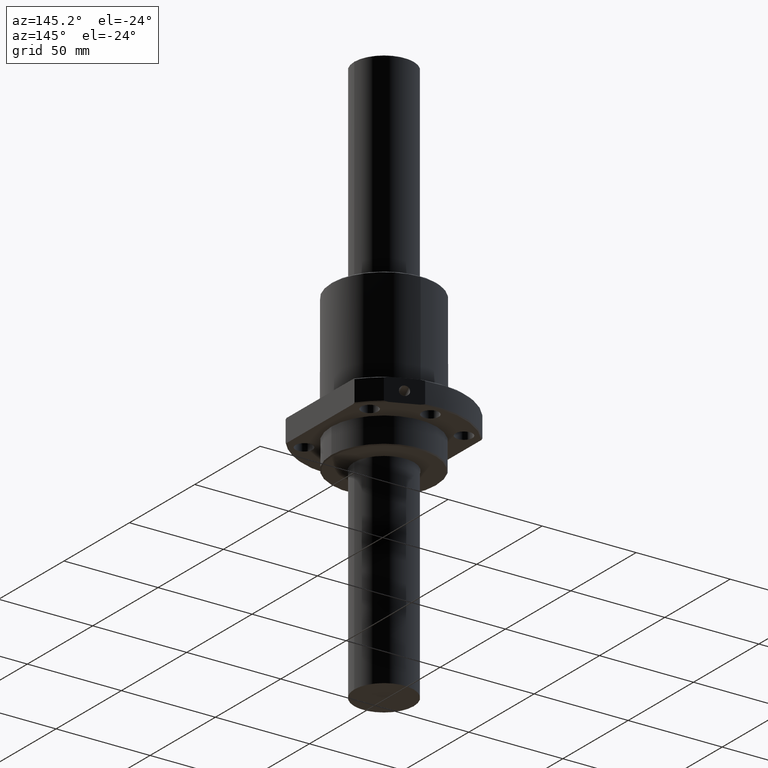
[diagram: clean part render]
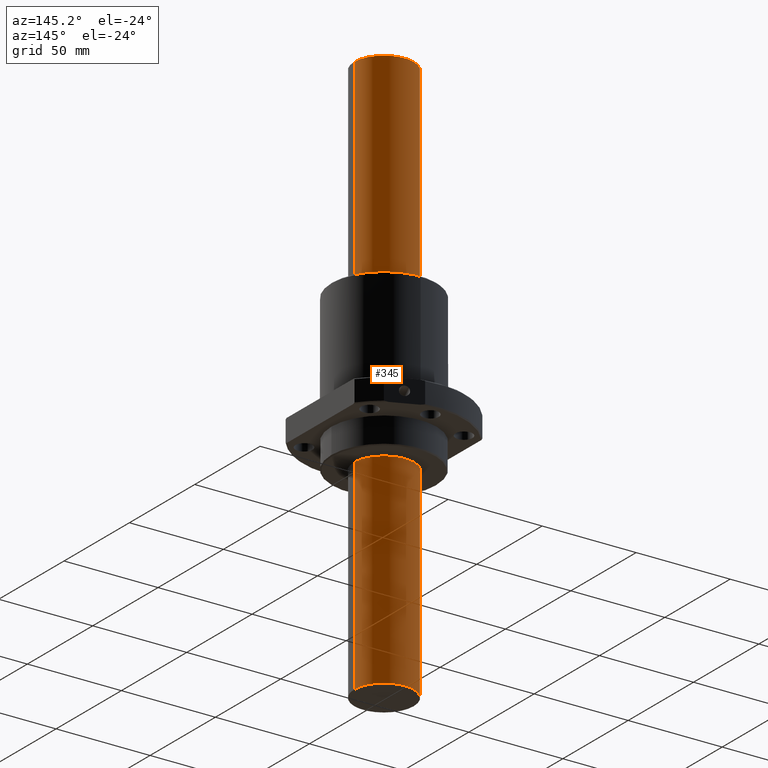
[diagram: same view with one face highlighted and labeled with its STEP entity id]
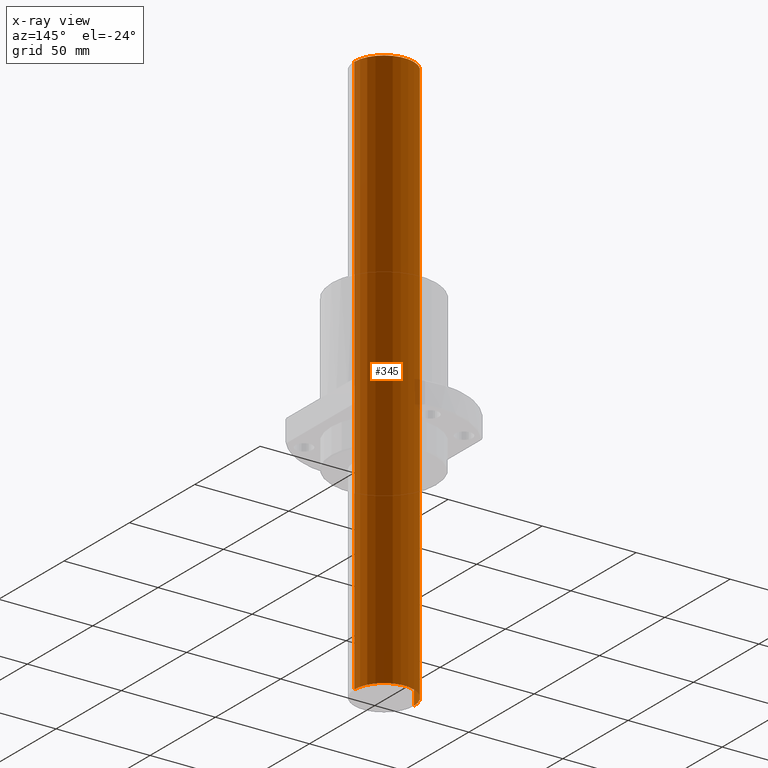
[diagram: x-ray of the same camera — body ghosted, the highlighted face saturated]
A machine part, auxiliary view. The second image highlights one B-rep face of the part: STEP entity #345.
The next image is the same camera in x-ray: the body ghosted, the highlighted face saturated — about 0% of this face is hidden behind the body in this view.
In plain terms, the highlighted cylindrical surface (edge-blend (fillet) strip) has radius 15.8 mm, axis along (0, 0, 1).
Its self-contained STEP definition (entity closure, byte-faithful):
#9 = ORIENTED_EDGE ( 'NONE', *, *, #1585, .F. ) ;
#13 = CARTESIAN_POINT ( 'NONE',  ( 15.80000000000000100, 0.0000000000000000000, -300.0000000000000000 ) ) ;
#67 = ORIENTED_EDGE ( 'NONE', *, *, #1762, .T. ) ;
#150 = DIRECTION ( 'NONE',  ( 1.000000000000000000, 0.0000000000000000000, 0.0000000000000000000 ) ) ;
#152 = DIRECTION ( 'NONE',  ( 0.0000000000000000000, -0.0000000000000000000, 1.000000000000000000 ) ) ;
#160 = CARTESIAN_POINT ( 'NONE',  ( 0.0000000000000000000, 0.0000000000000000000, 0.0000000000000000000 ) ) ;
#180 = VECTOR ( 'NONE', #1922, 1000.000000000000000 ) ;
#189 = CARTESIAN_POINT ( 'NONE',  ( 15.80000000000000100, 0.0000000000000000000, 0.0000000000000000000 ) ) ;
#234 = DIRECTION ( 'NONE',  ( 0.0000000000000000000, -0.0000000000000000000, 1.000000000000000000 ) ) ;
#345 = ADVANCED_FACE ( 'NONE', ( #736 ), #549, .T. ) ;
#409 = DIRECTION ( 'NONE',  ( 1.000000000000000000, 0.0000000000000000000, 0.0000000000000000000 ) ) ;
#545 = VERTEX_POINT ( 'NONE', #797 ) ;
#549 = CYLINDRICAL_SURFACE ( 'NONE', #603, 15.80000000000000100 ) ;
#603 = AXIS2_PLACEMENT_3D ( 'NONE', #1393, #234, #409 ) ;
#666 = VECTOR ( 'NONE', #1230, 1000.000000000000000 ) ;
#736 = FACE_OUTER_BOUND ( 'NONE', #749, .T. ) ;
#746 = ORIENTED_EDGE ( 'NONE', *, *, #1024, .F. ) ;
#749 = EDGE_LOOP ( 'NONE', ( #1405, #67, #9, #746 ) ) ;
#797 = CARTESIAN_POINT ( 'NONE',  ( -15.80000000000000100, 1.934941942652818000E-015, -300.0000000000000000 ) ) ;
#912 = CIRCLE ( 'NONE', #1607, 15.80000000000000100 ) ;
#918 = CIRCLE ( 'NONE', #1733, 15.80000000000000100 ) ;
#983 = VERTEX_POINT ( 'NONE', #1261 ) ;
#1024 = EDGE_CURVE ( 'NONE', #1702, #1574, #1243, .T. ) ;
#1230 = DIRECTION ( 'NONE',  ( 0.0000000000000000000, -0.0000000000000000000, 1.000000000000000000 ) ) ;
#1233 = CARTESIAN_POINT ( 'NONE',  ( 15.80000000000000100, 0.0000000000000000000, -300.0000000000000000 ) ) ;
#1243 = LINE ( 'NONE', #1233, #666 ) ;
#1261 = CARTESIAN_POINT ( 'NONE',  ( -15.80000000000000100, 1.934941942652818000E-015, 0.0000000000000000000 ) ) ;
#1393 = CARTESIAN_POINT ( 'NONE',  ( 0.0000000000000000000, 0.0000000000000000000, -300.0000000000000000 ) ) ;
#1405 = ORIENTED_EDGE ( 'NONE', *, *, #1917, .F. ) ;
#1574 = VERTEX_POINT ( 'NONE', #189 ) ;
#1585 = EDGE_CURVE ( 'NONE', #1574, #983, #912, .T. ) ;
#1607 = AXIS2_PLACEMENT_3D ( 'NONE', #160, #152, #150 ) ;
#1702 = VERTEX_POINT ( 'NONE', #13 ) ;
#1733 = AXIS2_PLACEMENT_3D ( 'NONE', #1796, #1776, #1767 ) ;
#1762 = EDGE_CURVE ( 'NONE', #545, #983, #1928, .T. ) ;
#1767 = DIRECTION ( 'NONE',  ( 1.000000000000000000, 0.0000000000000000000, 0.0000000000000000000 ) ) ;
#1776 = DIRECTION ( 'NONE',  ( -0.0000000000000000000, 0.0000000000000000000, -1.000000000000000000 ) ) ;
#1796 = CARTESIAN_POINT ( 'NONE',  ( 0.0000000000000000000, 0.0000000000000000000, -300.0000000000000000 ) ) ;
#1917 = EDGE_CURVE ( 'NONE', #545, #1702, #918, .T. ) ;
#1922 = DIRECTION ( 'NONE',  ( 0.0000000000000000000, -0.0000000000000000000, 1.000000000000000000 ) ) ;
#1926 = CARTESIAN_POINT ( 'NONE',  ( -15.80000000000000100, 1.934941942652818000E-015, -300.0000000000000000 ) ) ;
#1928 = LINE ( 'NONE', #1926, #180 ) ;